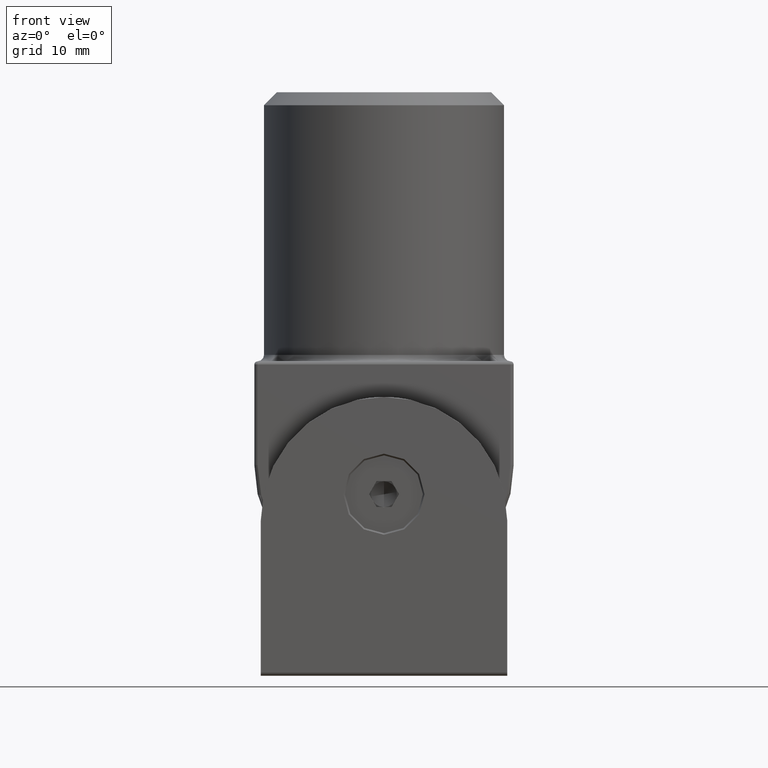
[diagram: clean part render]
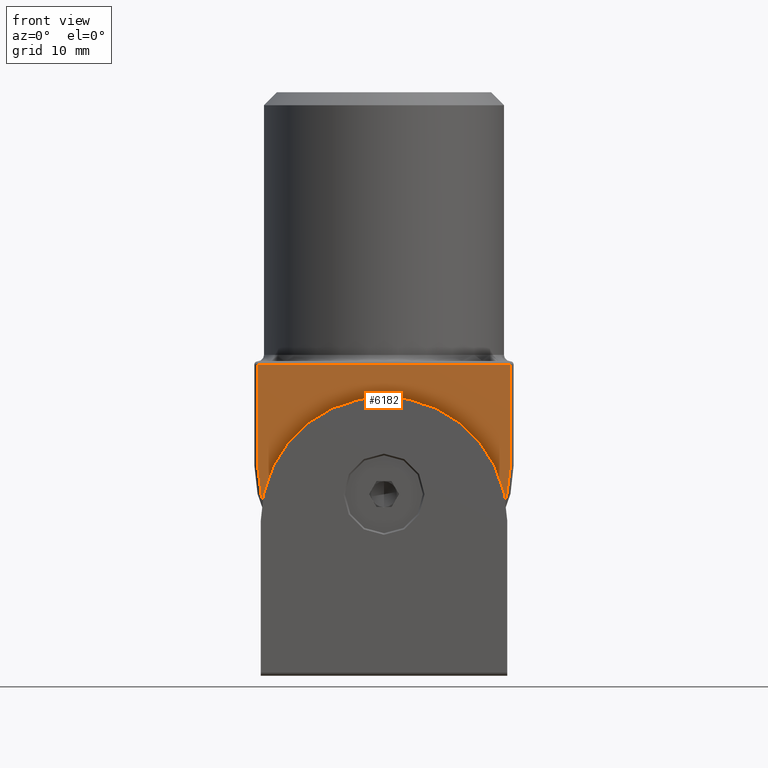
[diagram: same view with one face highlighted and labeled with its STEP entity id]
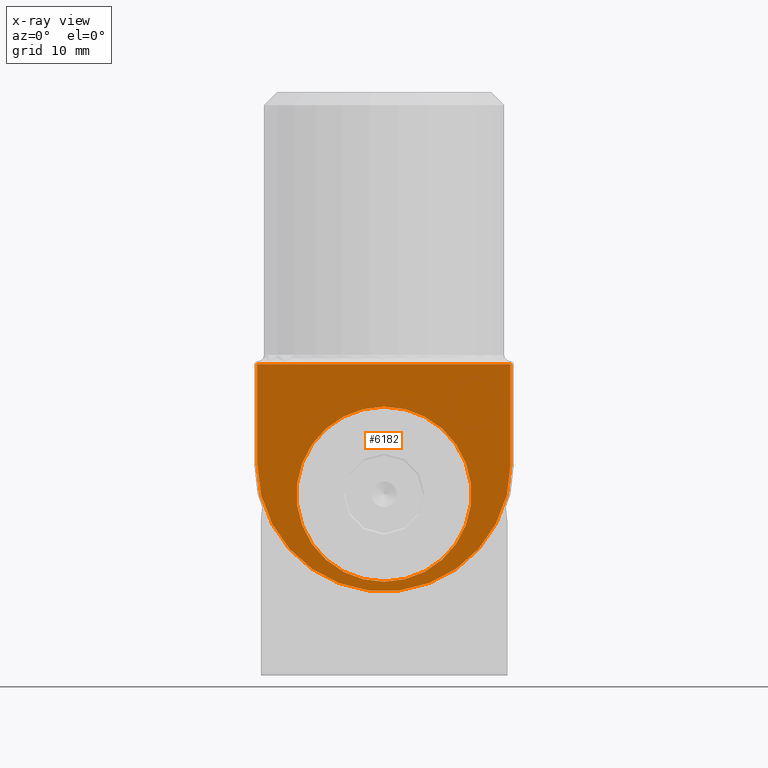
[diagram: x-ray of the same camera — body ghosted, the highlighted face saturated]
A machine part, front view. The second image highlights one B-rep face of the part: STEP entity #6182.
The next image is the same camera in x-ray: the body ghosted, the highlighted face saturated — about 0% of this face is hidden behind the body in this view.
In plain terms, the highlighted planar face has unit normal (0, 1, 0).
Its self-contained STEP definition (entity closure, byte-faithful):
#700 = EDGE_CURVE ( 'NONE', #18837, #10583, #14357, .T. ) ;
#770 = FACE_OUTER_BOUND ( 'NONE', #7679, .T. ) ;
#876 = CIRCLE ( 'NONE', #8850, 13.49999999999998401 ) ;
#1159 = CARTESIAN_POINT ( 'NONE',  ( 0.000000000000000000, -20.00000000000000000, -20.50000000000000355 ) ) ;
#2396 = DIRECTION ( 'NONE',  ( -2.168404344971010347E-16, -0.000000000000000000, 1.000000000000000000 ) ) ;
#2403 = VECTOR ( 'NONE', #9512, 1000.000000000000000 ) ;
#2476 = CARTESIAN_POINT ( 'NONE',  ( 1.653273178848924895E-15, -20.00000000000000000, -7.000000000000020428 ) ) ;
#2613 = VERTEX_POINT ( 'NONE', #4173 ) ;
#2826 = AXIS2_PLACEMENT_3D ( 'NONE', #9344, #9568, #10954 ) ;
#3577 = ORIENTED_EDGE ( 'NONE', *, *, #10978, .T. ) ;
#4173 = CARTESIAN_POINT ( 'NONE',  ( -19.50000000000000000, -20.00000000000000000, -0.5000000000000000000 ) ) ;
#5343 = LINE ( 'NONE', #21164, #11267 ) ;
#5735 = DIRECTION ( 'NONE',  ( 0.000000000000000000, 1.000000000000000000, 0.000000000000000000 ) ) ;
#6182 = ADVANCED_FACE ( 'NONE', ( #19148, #770 ), #12613, .F. ) ;
#6194 = CARTESIAN_POINT ( 'NONE',  ( 19.50000000000000000, -20.00000000000000000, -0.5000000000000000000 ) ) ;
#6602 = ORIENTED_EDGE ( 'NONE', *, *, #6976, .T. ) ;
#6613 = VERTEX_POINT ( 'NONE', #6194 ) ;
#6976 = EDGE_CURVE ( 'NONE', #2613, #10833, #13273, .T. ) ;
#7100 = ORIENTED_EDGE ( 'NONE', *, *, #18234, .T. ) ;
#7373 = DIRECTION ( 'NONE',  ( 0.000000000000000000, -0.000000000000000000, 1.000000000000000000 ) ) ;
#7679 = EDGE_LOOP ( 'NONE', ( #20859, #6602, #7100, #3577 ) ) ;
#8850 = AXIS2_PLACEMENT_3D ( 'NONE', #9004, #5735, #19085 ) ;
#9004 = CARTESIAN_POINT ( 'NONE',  ( 0.000000000000000000, -20.00000000000000000, -20.50000000000000355 ) ) ;
#9344 = CARTESIAN_POINT ( 'NONE',  ( 0.000000000000000000, -20.00000000000000000, -15.99999999999999289 ) ) ;
#9512 = DIRECTION ( 'NONE',  ( -1.000000000000000000, 0.000000000000000000, -0.000000000000000000 ) ) ;
#9568 = DIRECTION ( 'NONE',  ( -0.000000000000000000, -1.000000000000000000, -0.000000000000000000 ) ) ;
#10365 = VECTOR ( 'NONE', #18052, 1000.000000000000000 ) ;
#10583 = VERTEX_POINT ( 'NONE', #14963 ) ;
#10833 = VERTEX_POINT ( 'NONE', #20794 ) ;
#10954 = DIRECTION ( 'NONE',  ( 0.000000000000000000, 0.000000000000000000, 1.000000000000000000 ) ) ;
#10978 = EDGE_CURVE ( 'NONE', #14602, #6613, #5343, .T. ) ;
#11267 = VECTOR ( 'NONE', #2396, 1000.000000000000000 ) ;
#11454 = ORIENTED_EDGE ( 'NONE', *, *, #700, .T. ) ;
#11793 = EDGE_CURVE ( 'NONE', #6613, #2613, #18677, .T. ) ;
#11899 = DIRECTION ( 'NONE',  ( 0.000000000000000000, 0.000000000000000000, 1.000000000000000000 ) ) ;
#12613 = PLANE ( 'NONE',  #19571 ) ;
#13273 = LINE ( 'NONE', #17908, #10365 ) ;
#14193 = AXIS2_PLACEMENT_3D ( 'NONE', #1159, #15174, #11899 ) ;
#14357 = CIRCLE ( 'NONE', #14193, 13.49999999999998401 ) ;
#14602 = VERTEX_POINT ( 'NONE', #15597 ) ;
#14963 = CARTESIAN_POINT ( 'NONE',  ( 0.000000000000000000, -20.00000000000000000, -33.99999999999998579 ) ) ;
#14993 = CIRCLE ( 'NONE', #2826, 19.50000000000000355 ) ;
#15083 = EDGE_CURVE ( 'NONE', #10583, #18837, #876, .T. ) ;
#15174 = DIRECTION ( 'NONE',  ( 0.000000000000000000, 1.000000000000000000, 0.000000000000000000 ) ) ;
#15597 = CARTESIAN_POINT ( 'NONE',  ( 19.50000000000000355, -20.00000000000000000, -15.99999999999998934 ) ) ;
#17105 = ORIENTED_EDGE ( 'NONE', *, *, #15083, .T. ) ;
#17581 = DIRECTION ( 'NONE',  ( 0.000000000000000000, 1.000000000000000000, 0.000000000000000000 ) ) ;
#17908 = CARTESIAN_POINT ( 'NONE',  ( -19.50000000000000355, -20.00000000000000000, -15.99999999999998934 ) ) ;
#18052 = DIRECTION ( 'NONE',  ( -2.168404344971010347E-16, 0.000000000000000000, -1.000000000000000000 ) ) ;
#18234 = EDGE_CURVE ( 'NONE', #10833, #14602, #14993, .T. ) ;
#18677 = LINE ( 'NONE', #19512, #2403 ) ;
#18837 = VERTEX_POINT ( 'NONE', #2476 ) ;
#19085 = DIRECTION ( 'NONE',  ( 0.000000000000000000, 0.000000000000000000, 1.000000000000000000 ) ) ;
#19148 = FACE_BOUND ( 'NONE', #20126, .T. ) ;
#19296 = CARTESIAN_POINT ( 'NONE',  ( 0.000000000000000000, -20.00000000000000000, -15.99999999999999289 ) ) ;
#19512 = CARTESIAN_POINT ( 'NONE',  ( 0.000000000000000000, -20.00000000000000000, -0.5000000000000004441 ) ) ;
#19571 = AXIS2_PLACEMENT_3D ( 'NONE', #19296, #17581, #7373 ) ;
#20126 = EDGE_LOOP ( 'NONE', ( #17105, #11454 ) ) ;
#20794 = CARTESIAN_POINT ( 'NONE',  ( -19.50000000000000355, -20.00000000000000000, -15.99999999999999645 ) ) ;
#20859 = ORIENTED_EDGE ( 'NONE', *, *, #11793, .T. ) ;
#21164 = CARTESIAN_POINT ( 'NONE',  ( 19.50000000000000355, -20.00000000000000000, -15.99999999999998934 ) ) ;